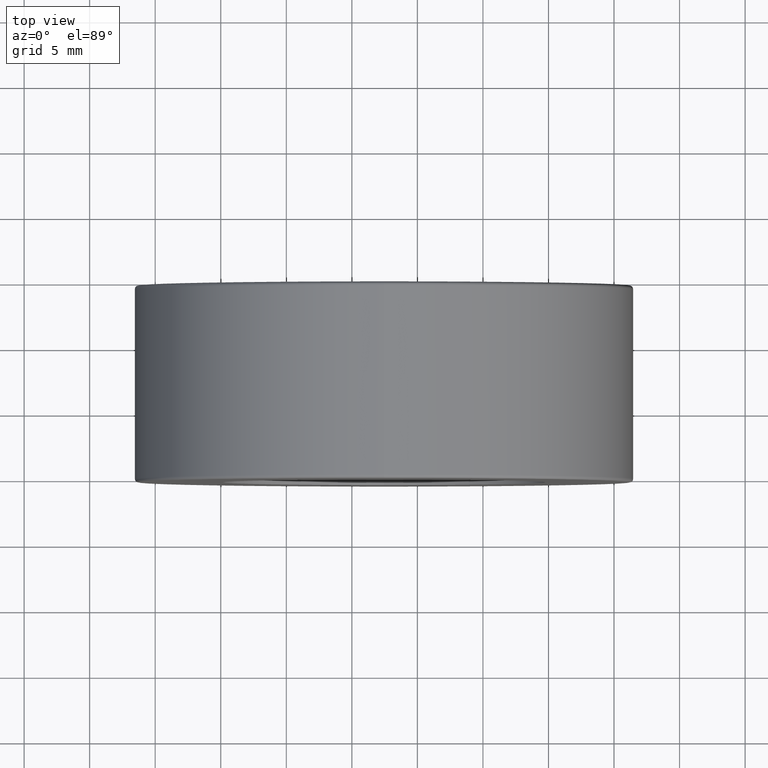
[diagram: clean part render]
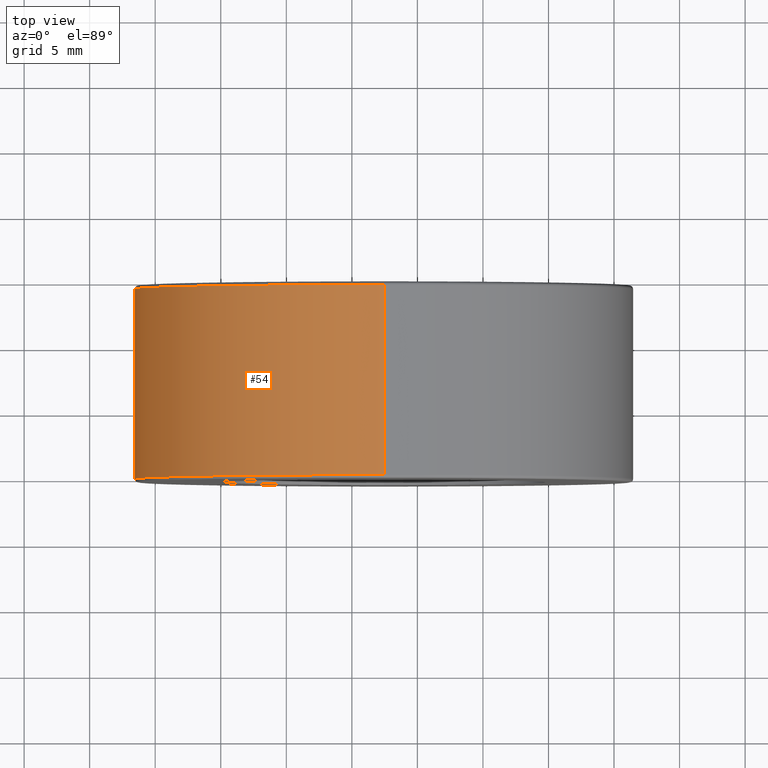
[diagram: same view with one face highlighted and labeled with its STEP entity id]
A machine part, top view. The second image highlights one B-rep face of the part: STEP entity #54.
In plain terms, the highlighted cylindrical surface (partial cylindrical patch) has radius 19 mm, axis along (-0, -1, -0).
Its self-contained STEP definition (entity closure, byte-faithful):
#4 = DIRECTION ( 'NONE',  ( -0.000000000000000000, -1.000000000000000000, -0.000000000000000000 ) ) ;
#18 = EDGE_CURVE ( 'NONE', #72, #259, #290, .T. ) ;
#23 = LINE ( 'NONE', #294, #407 ) ;
#32 = DIRECTION ( 'NONE',  ( 0.000000000000000000, 1.000000000000000000, 0.000000000000000000 ) ) ;
#39 = ORIENTED_EDGE ( 'NONE', *, *, #66, .F. ) ;
#40 = AXIS2_PLACEMENT_3D ( 'NONE', #364, #4, #472 ) ;
#42 = CARTESIAN_POINT ( 'NONE',  ( -7.546808913101048510, 4.606404872697272168, 19.00000000000000000 ) ) ;
#53 = EDGE_CURVE ( 'NONE', #110, #72, #133, .T. ) ;
#54 = ADVANCED_FACE ( 'NONE', ( #184 ), #359, .T. ) ;
#65 = DIRECTION ( 'NONE',  ( -0.000000000000000000, -1.000000000000000000, -0.000000000000000000 ) ) ;
#66 = EDGE_CURVE ( 'NONE', #438, #259, #23, .T. ) ;
#70 = ORIENTED_EDGE ( 'NONE', *, *, #135, .T. ) ;
#72 = VERTEX_POINT ( 'NONE', #154 ) ;
#89 = AXIS2_PLACEMENT_3D ( 'NONE', #269, #32, #453 ) ;
#110 = VERTEX_POINT ( 'NONE', #578 ) ;
#133 = LINE ( 'NONE', #42, #608 ) ;
#135 = EDGE_CURVE ( 'NONE', #438, #110, #217, .T. ) ;
#154 = CARTESIAN_POINT ( 'NONE',  ( -7.546808913101048510, -10.14359512730272783, 19.00000000000000000 ) ) ;
#161 = ORIENTED_EDGE ( 'NONE', *, *, #18, .T. ) ;
#184 = FACE_OUTER_BOUND ( 'NONE', #322, .T. ) ;
#217 = CIRCLE ( 'NONE', #228, 18.99999999999999645 ) ;
#228 = AXIS2_PLACEMENT_3D ( 'NONE', #574, #65, #580 ) ;
#259 = VERTEX_POINT ( 'NONE', #595 ) ;
#269 = CARTESIAN_POINT ( 'NONE',  ( -7.546808913101048510, -10.14359512730272783, 38.00000000000000000 ) ) ;
#290 = CIRCLE ( 'NONE', #89, 18.99999999999999645 ) ;
#294 = CARTESIAN_POINT ( 'NONE',  ( -7.546808913101045846, 4.606404872697272168, 56.99999999999999289 ) ) ;
#322 = EDGE_LOOP ( 'NONE', ( #39, #70, #507, #161 ) ) ;
#333 = DIRECTION ( 'NONE',  ( -0.000000000000000000, -1.000000000000000000, -0.000000000000000000 ) ) ;
#359 = CYLINDRICAL_SURFACE ( 'NONE', #40, 19.00000000000000000 ) ;
#364 = CARTESIAN_POINT ( 'NONE',  ( -7.546808913101048510, 4.606404872697272168, 38.00000000000000000 ) ) ;
#403 = DIRECTION ( 'NONE',  ( -0.000000000000000000, -1.000000000000000000, -0.000000000000000000 ) ) ;
#407 = VECTOR ( 'NONE', #333, 1000.000000000000000 ) ;
#438 = VERTEX_POINT ( 'NONE', #604 ) ;
#453 = DIRECTION ( 'NONE',  ( 0.000000000000000000, 0.000000000000000000, 1.000000000000000000 ) ) ;
#472 = DIRECTION ( 'NONE',  ( 0.000000000000000000, 0.000000000000000000, -1.000000000000000000 ) ) ;
#507 = ORIENTED_EDGE ( 'NONE', *, *, #53, .T. ) ;
#574 = CARTESIAN_POINT ( 'NONE',  ( -7.546808913101048510, 4.356404872697271280, 38.00000000000000000 ) ) ;
#578 = CARTESIAN_POINT ( 'NONE',  ( -7.546808913101044958, 4.356404872697271280, 19.00000000000000000 ) ) ;
#580 = DIRECTION ( 'NONE',  ( 0.000000000000000000, 0.000000000000000000, 1.000000000000000000 ) ) ;
#595 = CARTESIAN_POINT ( 'NONE',  ( -7.546808913101045846, -10.14359512730272783, 56.99999999999999289 ) ) ;
#604 = CARTESIAN_POINT ( 'NONE',  ( -7.546808913101048510, 4.356404872697271280, 56.99999999999999289 ) ) ;
#608 = VECTOR ( 'NONE', #403, 1000.000000000000000 ) ;